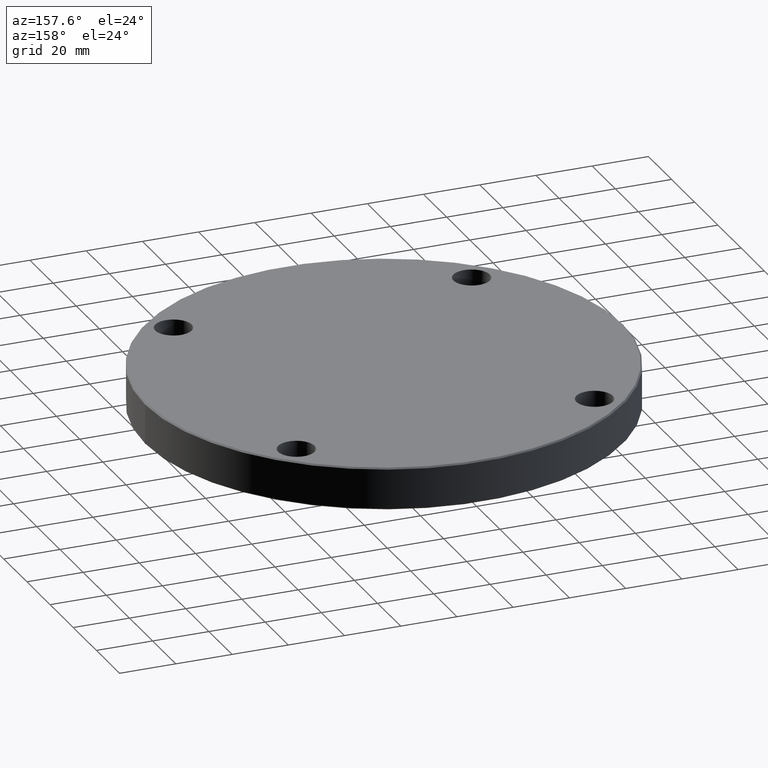
[diagram: clean part render]
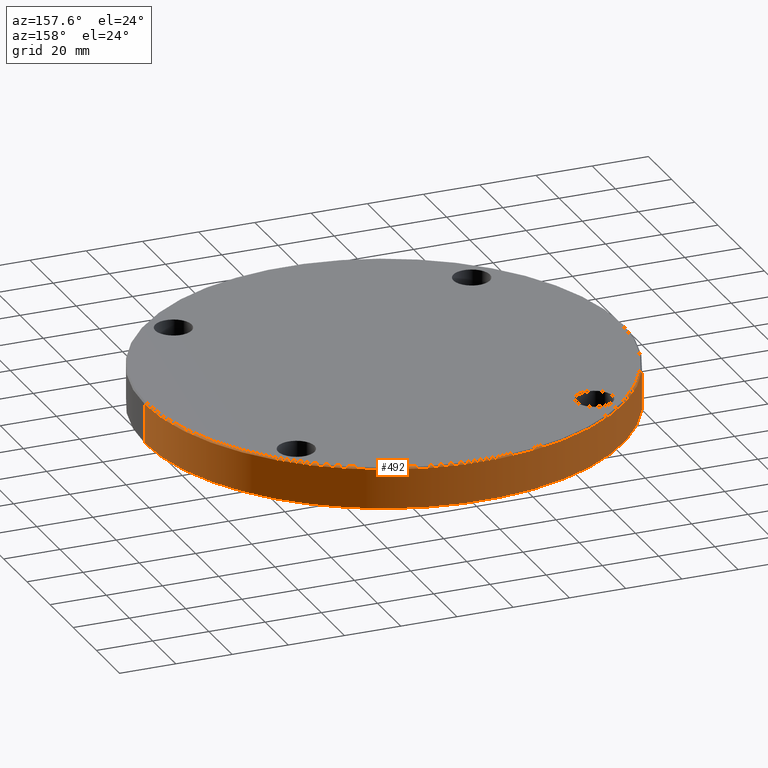
[diagram: same view with one face highlighted and labeled with its STEP entity id]
A machine part, auxiliary view. The second image highlights one B-rep face of the part: STEP entity #492.
In plain terms, the highlighted cylindrical surface (partial cylindrical patch) has radius 85 mm, axis along (-0, -0, -1).
Its self-contained STEP definition (entity closure, byte-faithful):
#10 = ORIENTED_EDGE ( 'NONE', *, *, #514, .F. ) ;
#11 = DIRECTION ( 'NONE',  ( -0.000000000000000000, -0.000000000000000000, -1.000000000000000000 ) ) ;
#29 = CARTESIAN_POINT ( 'NONE',  ( 85.00000000000001421, 1.040949779275250495E-14, 0.5000000000000004441 ) ) ;
#33 = ORIENTED_EDGE ( 'NONE', *, *, #244, .T. ) ;
#36 = VECTOR ( 'NONE', #11, 1000.000000000000000 ) ;
#46 = DIRECTION ( 'NONE',  ( -0.000000000000000000, -0.000000000000000000, -1.000000000000000000 ) ) ;
#65 = ORIENTED_EDGE ( 'NONE', *, *, #221, .T. ) ;
#68 = EDGE_LOOP ( 'NONE', ( #65, #121, #33, #10 ) ) ;
#70 = CARTESIAN_POINT ( 'NONE',  ( 0.000000000000000000, 0.000000000000000000, 14.49999999999995737 ) ) ;
#100 = CIRCLE ( 'NONE', #322, 85.00000000000001421 ) ;
#121 = ORIENTED_EDGE ( 'NONE', *, *, #531, .T. ) ;
#159 = CARTESIAN_POINT ( 'NONE',  ( 0.000000000000000000, 0.000000000000000000, 0.5000000000000004441 ) ) ;
#171 = VERTEX_POINT ( 'NONE', #228 ) ;
#185 = FACE_OUTER_BOUND ( 'NONE', #68, .T. ) ;
#189 = DIRECTION ( 'NONE',  ( 1.000000000000000000, 0.000000000000000000, 0.000000000000000000 ) ) ;
#202 = AXIS2_PLACEMENT_3D ( 'NONE', #309, #46, #364 ) ;
#221 = EDGE_CURVE ( 'NONE', #344, #472, #100, .T. ) ;
#227 = CARTESIAN_POINT ( 'NONE',  ( 85.00000000000001421, 1.040949779275250495E-14, 14.49999999999995737 ) ) ;
#228 = CARTESIAN_POINT ( 'NONE',  ( -85.00000000000001421, 0.000000000000000000, 0.5000000000000004441 ) ) ;
#244 = EDGE_CURVE ( 'NONE', #296, #171, #293, .T. ) ;
#269 = CYLINDRICAL_SURFACE ( 'NONE', #202, 85.00000000000001421 ) ;
#293 = CIRCLE ( 'NONE', #484, 85.00000000000001421 ) ;
#296 = VERTEX_POINT ( 'NONE', #29 ) ;
#309 = CARTESIAN_POINT ( 'NONE',  ( 0.000000000000000000, 0.000000000000000000, 15.00000000000000000 ) ) ;
#322 = AXIS2_PLACEMENT_3D ( 'NONE', #70, #416, #539 ) ;
#323 = VECTOR ( 'NONE', #493, 1000.000000000000000 ) ;
#338 = DIRECTION ( 'NONE',  ( -0.000000000000000000, -0.000000000000000000, 1.000000000000000000 ) ) ;
#344 = VERTEX_POINT ( 'NONE', #518 ) ;
#364 = DIRECTION ( 'NONE',  ( -1.000000000000000000, 0.000000000000000000, 0.000000000000000000 ) ) ;
#407 = LINE ( 'NONE', #538, #36 ) ;
#416 = DIRECTION ( 'NONE',  ( 0.000000000000000000, 0.000000000000000000, -1.000000000000000000 ) ) ;
#472 = VERTEX_POINT ( 'NONE', #227 ) ;
#484 = AXIS2_PLACEMENT_3D ( 'NONE', #159, #338, #189 ) ;
#492 = ADVANCED_FACE ( 'NONE', ( #185 ), #269, .T. ) ;
#493 = DIRECTION ( 'NONE',  ( -0.000000000000000000, -0.000000000000000000, -1.000000000000000000 ) ) ;
#500 = CARTESIAN_POINT ( 'NONE',  ( 85.00000000000001421, 1.040949779275250495E-14, 15.00000000000000000 ) ) ;
#514 = EDGE_CURVE ( 'NONE', #344, #171, #407, .T. ) ;
#518 = CARTESIAN_POINT ( 'NONE',  ( -85.00000000000001421, 0.000000000000000000, 14.49999999999995737 ) ) ;
#531 = EDGE_CURVE ( 'NONE', #472, #296, #541, .T. ) ;
#538 = CARTESIAN_POINT ( 'NONE',  ( -85.00000000000001421, 0.000000000000000000, 15.00000000000000000 ) ) ;
#539 = DIRECTION ( 'NONE',  ( 1.000000000000000000, 0.000000000000000000, 0.000000000000000000 ) ) ;
#541 = LINE ( 'NONE', #500, #323 ) ;